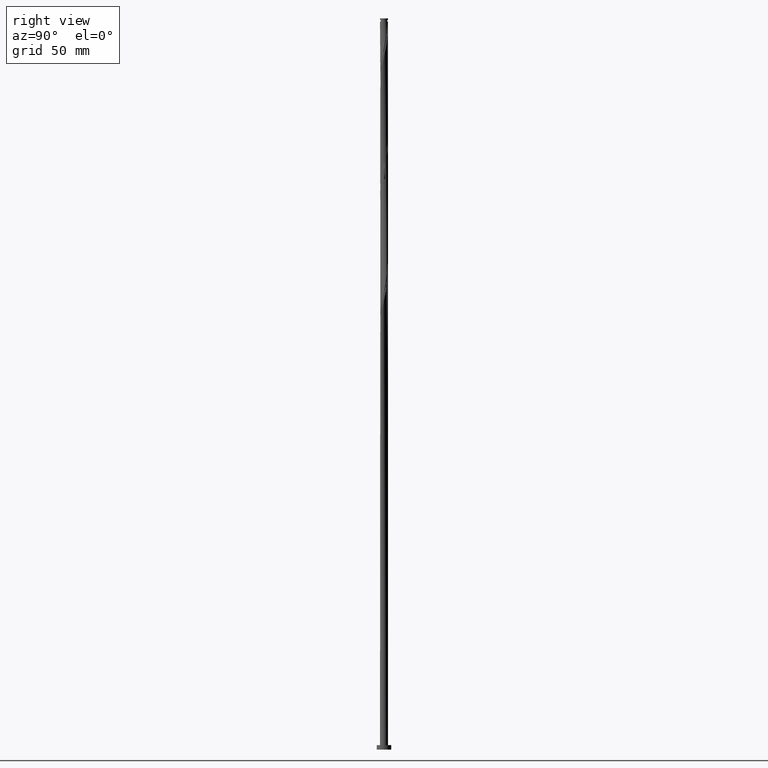
[diagram: clean part render]
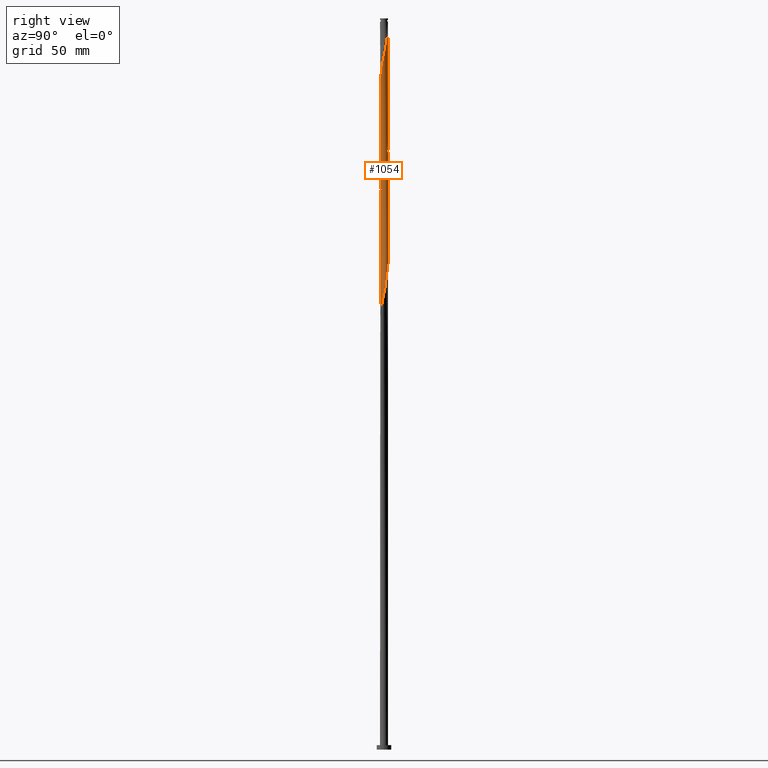
[diagram: same view with one face highlighted and labeled with its STEP entity id]
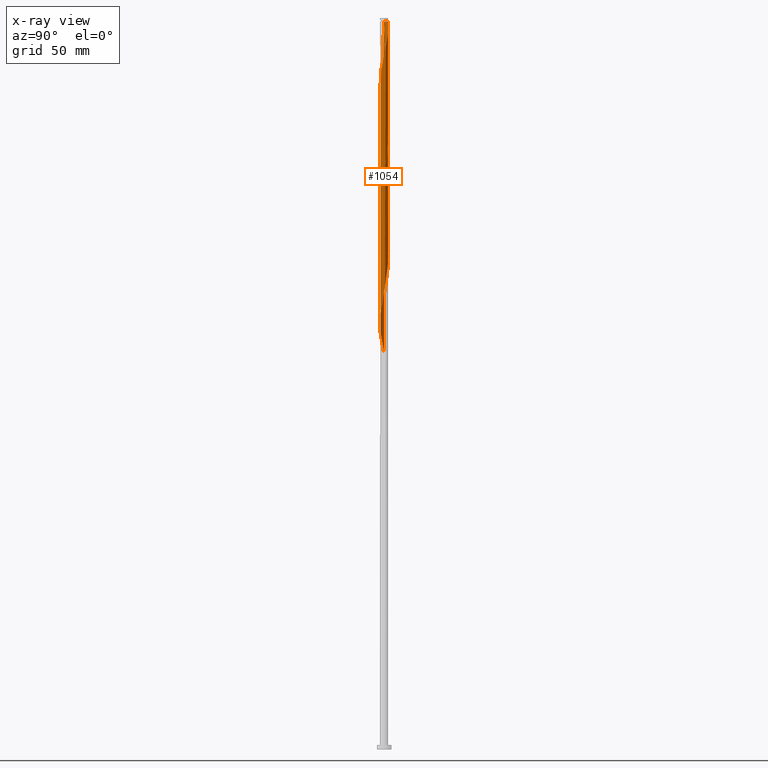
[diagram: x-ray of the same camera — body ghosted, the highlighted face saturated]
A machine part, right view. The second image highlights one B-rep face of the part: STEP entity #1054.
The next image is the same camera in x-ray: the body ghosted, the highlighted face saturated — about 0% of this face is hidden behind the body in this view.
In plain terms, the highlighted cylindrical surface (bore or boss wall) has radius 2.75 mm, axis along (-0, -0, -1).
Its self-contained STEP definition (entity closure, byte-faithful):
#6 = CARTESIAN_POINT ( 'NONE',  ( -2.536454499957780495, 1.062496385708639801, 349.3820904447323983 ) ) ;
#27 = CARTESIAN_POINT ( 'NONE',  ( -2.750000000000000888, 8.331319841557538890E-16, 271.3097874227292436 ) ) ;
#32 = CARTESIAN_POINT ( 'NONE',  ( 1.312315348961076156, 2.431807739867421159, 327.2466737780657695 ) ) ;
#34 = DIRECTION ( 'NONE',  ( -0.000000000000000000, -0.000000000000000000, -1.000000000000000000 ) ) ;
#42 = VERTEX_POINT ( 'NONE', #1662 ) ;
#58 = CARTESIAN_POINT ( 'NONE',  ( -2.641101260048139832, 0.8126774224562037796, 434.0175071113991407 ) ) ;
#71 = CARTESIAN_POINT ( 'NONE',  ( 1.312315348961076156, 2.431807739867421159, 410.5800071113989702 ) ) ;
#75 = CARTESIAN_POINT ( 'NONE',  ( -0.5472430904086980075, 2.695000000000714380, 497.8195904447322278 ) ) ;
#78 = VERTEX_POINT ( 'NONE', #296 ) ;
#80 = CARTESIAN_POINT ( 'NONE',  ( 2.750000000000000000, 3.367778697655220519E-16, 497.8195904447323414 ) ) ;
#83 = CARTESIAN_POINT ( 'NONE',  ( 2.442190327116361193, 1.292890894444388872, 402.7675071113990839 ) ) ;
#85 = CARTESIAN_POINT ( 'NONE',  ( -2.749978161415632893, -0.01095955004170822214, 432.7154237780657127 ) ) ;
#92 = CARTESIAN_POINT ( 'NONE',  ( 1.062496385708640911, 2.536454499957780051, 328.5487571113989134 ) ) ;
#95 = CARTESIAN_POINT ( 'NONE',  ( -2.280434475942255457, 1.536918540760688234, 430.1112571113990839 ) ) ;
#97 = CARTESIAN_POINT ( 'NONE',  ( 2.431807739867426932, 1.312315348961076822, 480.8925071113990271 ) ) ;
#104 = CARTESIAN_POINT ( 'NONE',  ( 2.292612075483181133, 1.518693475112307345, 320.7362571113990839 ) ) ;
#107 = CARTESIAN_POINT ( 'NONE',  ( 2.748898739951862513, 0.2818087583610887070, 475.6841737780657127 ) ) ;
#112 = CARTESIAN_POINT ( 'NONE',  ( -0.2818087583610884295, -2.748898739951858072, 374.1216737780655990 ) ) ;
#116 = CARTESIAN_POINT ( 'NONE',  ( 1.518693475112311786, 2.292612075483183798, 487.4029237780655990 ) ) ;
#145 = CARTESIAN_POINT ( 'NONE',  ( 2.431807739867421159, -1.312315348961075268, 389.7466737780657127 ) ) ;
#147 = CARTESIAN_POINT ( 'NONE',  ( -1.952277778205150360, -1.936778633898660118, 281.6737571113990839 ) ) ;
#168 = CARTESIAN_POINT ( 'NONE',  ( -2.292612075483181133, -1.518693475112308233, 279.0695904447322846 ) ) ;
#174 = CARTESIAN_POINT ( 'NONE',  ( -2.749999999999951150, 0.000000000000000000, 497.8195904447323414 ) ) ;
#215 =( BOUNDED_CURVE ( )  B_SPLINE_CURVE ( 2, ( #1269, #1869, #501, #1719, #1570, #977, #1434, #145, #411, #1655, #1802, #289, #271, #764, #1792, #907, #1371, #915, #598, #112, #728, #1032, #1343, #1952, #1051, #1828, #1272, #1872, #504, #1124, #971, #609, #1227, #457, #1675, #1239, #924, #776, #6, #467, #321, #938, #1927, #1625, #1945, #1901, #1568, #1010, #955, #1106, #534, #690, #1304, #402, #92, #32, #1477, #649, #1705, #1867, #104, #1153, #1323, #1000, #1921, #720, #1332, #347, #498, #1117, #1718, #1447, #1753, #382, #1600, #237, #432, #611, #1657, #1524, #1198, #748, #591, #1830, #1208, #1812, #291, #1515, #1373, #757, #147, #470, #168, #1735, #622, #961, #1274, #506, #27 ),
 .UNSPECIFIED., .F., .T. ) 
 B_SPLINE_CURVE_WITH_KNOTS ( ( 3, 2, 2, 2, 2, 2, 2, 2, 2, 2, 2, 2, 2, 2, 2, 2, 2, 2, 2, 2, 2, 2, 2, 2, 2, 2, 2, 2, 2, 2, 2, 2, 2, 2, 2, 2, 2, 2, 2, 2, 2, 2, 2, 2, 2, 2, 2, 2, 2, 3 ),
 ( 0.5545286902180867061, 0.5546875000000000000, 0.5625000000000000000, 0.5703125000000000000, 0.5781250000000000000, 0.5859375000000000000, 0.5937500000000000000, 0.6015625000000000000, 0.6093750000000000000, 0.6171875000000000000, 0.6250000000000000000, 0.6328125000000000000, 0.6406250000000000000, 0.6484375000000000000, 0.6562500000000000000, 0.6640625000000000000, 0.6718750000000000000, 0.6796875000000000000, 0.6875000000000000000, 0.6953125000000000000, 0.7031250000000000000, 0.7109375000000000000, 0.7187500000000000000, 0.7265625000000000000, 0.7343750000000000000, 0.7421875000000000000, 0.7500000000000000000, 0.7578125000000000000, 0.7656250000000000000, 0.7734375000000000000, 0.7812500000000000000, 0.7890625000000000000, 0.7968750000000000000, 0.8046875000000000000, 0.8125000000000000000, 0.8203125000000000000, 0.8281250000000000000, 0.8359375000000000000, 0.8437500000000000000, 0.8515625000000000000, 0.8593750000000000000, 0.8671875000000000000, 0.8750000000000000000, 0.8828125000000000000, 0.8906250000000000000, 0.8984375000000000000, 0.9062500000000000000, 0.9140625000000000000, 0.9218750000000000000, 0.9295286902180871502 ),
 .UNSPECIFIED. ) 
 CURVE ( )  GEOMETRIC_REPRESENTATION_ITEM ( )  RATIONAL_B_SPLINE_CURVE ( ( 0.9089165573359827555, 0.9090019243628877366, 0.9090909090909797818, 0.9047133878838858889, 0.9090909090909797818, 0.9047133878838858889, 0.9090909090909797818, 0.9047133878838858889, 0.9090909090909797818, 0.9047133878838858889, 0.9090909090909797818, 0.9047133878838858889, 0.9090909090909797818, 0.9047133878838858889, 0.9090909090909797818, 0.9047133878838858889, 0.9090909090909797818, 0.9047133878838858889, 0.9090909090909797818, 0.9047133878838858889, 0.9090909090909797818, 0.9047133878838858889, 0.9090909090909797818, 0.9047133878838858889, 0.9090909090909797818, 0.9047133878838858889, 0.9090909090909797818, 0.9047133878838858889, 0.9090909090909797818, 0.9047133878838858889, 0.9090909090909797818, 0.9047133878838858889, 0.9090909090909797818, 0.9047133878838858889, 0.9090909090909797818, 0.9047133878838858889, 0.9090909090909797818, 0.9047133878838858889, 0.9090909090909797818, 0.9047133878838858889, 0.9090909090909797818, 0.9047133878838858889, 0.9090909090909797818, 0.9047133878838858889, 0.9090909090909797818, 0.9047133878838858889, 0.9090909090909797818, 0.9047133878838858889, 0.9090909090909797818, 0.9047133878838858889, 0.9090909090909797818, 0.9047133878838858889, 0.9090909090909797818, 0.9047133878838858889, 0.9090909090909797818, 0.9047133878838858889, 0.9090909090909797818, 0.9047133878838858889, 0.9090909090909797818, 0.9047133878838858889, 0.9090909090909797818, 0.9047133878838858889, 0.9090909090909797818, 0.9047133878838858889, 0.9090909090909797818, 0.9047133878838858889, 0.9090909090909797818, 0.9047133878838858889, 0.9090909090909797818, 0.9047133878838858889, 0.9090909090909797818, 0.9047133878838858889, 0.9090909090909797818, 0.9047133878838858889, 0.9090909090909797818, 0.9047133878838858889, 0.9090909090909797818, 0.9047133878838858889, 0.9090909090909797818, 0.9047133878838858889, 0.9090909090909797818, 0.9047133878838858889, 0.9090909090909797818, 0.9047133878838858889, 0.9090909090909797818, 0.9047133878838858889, 0.9090909090909797818, 0.9047133878838858889, 0.9090909090909797818, 0.9047133878838858889, 0.9090909090909797818, 0.9047133878838858889, 0.9090909090909797818, 0.9047133878838858889, 0.9090909090909797818, 0.9047133878838858889, 0.9090909090909797818, 0.9048023726119778232, 0.9089165573359829775 ) ) 
 REPRESENTATION_ITEM ( '' )  );
#224 = CARTESIAN_POINT ( 'NONE',  ( -1.042245777770503645, 2.544842576412056800, 422.2987571113989702 ) ) ;
#229 = CARTESIAN_POINT ( 'NONE',  ( -2.695000000000002061, -0.5472430904086459380, 435.3195904447322846 ) ) ;
#232 = DIRECTION ( 'NONE',  ( -0.000000000000000000, -0.000000000000000000, -1.000000000000000000 ) ) ;
#237 = CARTESIAN_POINT ( 'NONE',  ( 1.744496055780226040, -2.143033823850002406, 301.2050071113989702 ) ) ;
#250 = CARTESIAN_POINT ( 'NONE',  ( 0.000000000000000000, 0.000000000000000000, 500.0000000000000000 ) ) ;
#263 = ORIENTED_EDGE ( 'NONE', *, *, #1513, .F. ) ;
#265 = CARTESIAN_POINT ( 'NONE',  ( 2.280434475942259898, 1.536918540760690233, 482.1945904447322846 ) ) ;
#271 = CARTESIAN_POINT ( 'NONE',  ( 1.518693475112308233, -2.292612075483181133, 383.2362571113990271 ) ) ;
#289 = CARTESIAN_POINT ( 'NONE',  ( 1.744496055780226040, -2.143033823850002406, 384.5383404447322846 ) ) ;
#291 = CARTESIAN_POINT ( 'NONE',  ( -1.062496385708640467, -2.536454499957780495, 286.8820904447323983 ) ) ;
#296 = CARTESIAN_POINT ( 'NONE',  ( -2.750000000000003553, -4.752766352566343433E-17, 432.6627268000688673 ) ) ;
#299 = EDGE_CURVE ( 'NONE', #1903, #882, #1549, .T. ) ;
#321 = CARTESIAN_POINT ( 'NONE',  ( -2.280434475942255457, 1.536918540760688234, 346.7779237780657695 ) ) ;
#347 = CARTESIAN_POINT ( 'NONE',  ( 2.748898739951857628, -0.2818087583610896507, 311.6216737780655990 ) ) ;
#369 = LINE ( 'NONE', #395, #807 ) ;
#377 = CARTESIAN_POINT ( 'NONE',  ( -2.280434475942259898, -1.536918540760689789, 440.5279237780655990 ) ) ;
#382 = CARTESIAN_POINT ( 'NONE',  ( 2.129061212017091087, -1.761521732560300535, 303.8091737780656558 ) ) ;
#392 = CARTESIAN_POINT ( 'NONE',  ( -1.936778633898660118, 1.952277778205150804, 427.5070904447323414 ) ) ;
#394 = CARTESIAN_POINT ( 'NONE',  ( -2.536454499957784936, -1.062496385708640911, 437.9237571113989702 ) ) ;
#395 = CARTESIAN_POINT ( 'NONE',  ( -2.750000000000000000, 0.000000000000000000, 500.0000000000000000 ) ) ;
#402 = CARTESIAN_POINT ( 'NONE',  ( 0.8126774224562031135, 2.641101260048139832, 329.8508404447323983 ) ) ;
#411 = CARTESIAN_POINT ( 'NONE',  ( 2.280434475942255457, -1.536918540760689345, 388.4445904447322846 ) ) ;
#416 = CARTESIAN_POINT ( 'NONE',  ( -1.292890894444391536, -2.442190327116363857, 447.0383404447323414 ) ) ;
#432 = CARTESIAN_POINT ( 'NONE',  ( 1.518693475112308233, -2.292612075483181133, 299.9029237780657127 ) ) ;
#437 = VERTEX_POINT ( 'NONE', #174 ) ;
#457 = CARTESIAN_POINT ( 'NONE',  ( -2.751057582879400609, -0.2598896582776700770, 355.8925071113990271 ) ) ;
#467 = CARTESIAN_POINT ( 'NONE',  ( -2.431807739867421159, 1.312315348961075268, 348.0800071113990839 ) ) ;
#470 = CARTESIAN_POINT ( 'NONE',  ( -2.143033823850001518, -1.744496055780227595, 280.3716737780656558 ) ) ;
#476 = CARTESIAN_POINT ( 'NONE',  ( 2.750000000000000000, 3.367778697655220519E-16, 500.0000000000000000 ) ) ;
#481 = CARTESIAN_POINT ( 'NONE',  ( -2.694999999999998952, 0.5472430904086462711, 435.3195904447323414 ) ) ;
#498 = CARTESIAN_POINT ( 'NONE',  ( 2.694999999999998952, -0.5472430904086464931, 310.3195904447323983 ) ) ;
#501 = CARTESIAN_POINT ( 'NONE',  ( 2.749978161415628009, -0.01095955004170866623, 396.2570904447324551 ) ) ;
#504 = CARTESIAN_POINT ( 'NONE',  ( -2.292612075483181133, -1.518693475112308233, 362.4029237780657695 ) ) ;
#506 = CARTESIAN_POINT ( 'NONE',  ( -2.749999999999999556, -0.2653194910546968766, 272.5857675281452543 ) ) ;
#526 = CARTESIAN_POINT ( 'NONE',  ( 0.2818087583610884295, 2.748898739951858072, 415.7883404447323414 ) ) ;
#534 = CARTESIAN_POINT ( 'NONE',  ( 0.01095955004170887440, 2.749978161415628009, 333.7570904447323983 ) ) ;
#536 = CARTESIAN_POINT ( 'NONE',  ( 0.5472430904086464931, 2.694999999999998952, 414.4862571113990271 ) ) ;
#549 = CARTESIAN_POINT ( 'NONE',  ( 1.952277778205152581, -1.936778633898663449, 463.9654237780655990 ) ) ;
#559 = CARTESIAN_POINT ( 'NONE',  ( 2.129061212017095972, 1.761521732560302311, 483.4966737780657127 ) ) ;
#566 = CARTESIAN_POINT ( 'NONE',  ( -2.431807739867421159, 1.312315348961075268, 431.4133404447322846 ) ) ;
#568 = CARTESIAN_POINT ( 'NONE',  ( -0.7916006610966208612, -2.647494825707756849, 449.6425071113990839 ) ) ;
#576 = CARTESIAN_POINT ( 'NONE',  ( -0.2598896582776717423, -2.751057582879404606, 452.2466737780657695 ) ) ;
#579 = ORIENTED_EDGE ( 'NONE', *, *, #1934, .T. ) ;
#591 = CARTESIAN_POINT ( 'NONE',  ( -0.01095955004170855521, -2.749978161415628009, 292.0904237780656558 ) ) ;
#596 = VERTEX_POINT ( 'NONE', #1858 ) ;
#598 = CARTESIAN_POINT ( 'NONE',  ( -0.01095955004170855521, -2.749978161415628009, 375.4237571113990839 ) ) ;
#609 = CARTESIAN_POINT ( 'NONE',  ( -2.647494825707753296, -0.7916006610966187518, 358.4966737780657695 ) ) ;
#611 = CARTESIAN_POINT ( 'NONE',  ( 1.292890894444388206, -2.442190327116361193, 298.6008404447323414 ) ) ;
#622 = CARTESIAN_POINT ( 'NONE',  ( -2.544842576412057689, -1.042245777770502757, 276.4654237780658264 ) ) ;
#649 = CARTESIAN_POINT ( 'NONE',  ( 1.761521732560300535, 2.129061212017090199, 324.6425071113990271 ) ) ;
#657 = DIRECTION ( 'NONE',  ( -0.000000000000000000, -0.000000000000000000, -1.000000000000000000 ) ) ;
#658 = EDGE_CURVE ( 'NONE', #882, #596, #215, .T. ) ;
#674 = CARTESIAN_POINT ( 'NONE',  ( -0.5472430904086980075, 2.695000000000713936, 497.8195904447322278 ) ) ;
#686 = DIRECTION ( 'NONE',  ( -0.000000000000000000, -0.000000000000000000, -1.000000000000000000 ) ) ;
#690 = CARTESIAN_POINT ( 'NONE',  ( 0.2818087583610884295, 2.748898739951858072, 332.4550071113990271 ) ) ;
#692 = CARTESIAN_POINT ( 'NONE',  ( 1.536918540760689345, 2.280434475942255457, 409.2779237780657695 ) ) ;
#694 = CARTESIAN_POINT ( 'NONE',  ( 2.292612075483183798, -1.518693475112311786, 466.5695904447322278 ) ) ;
#703 = CARTESIAN_POINT ( 'NONE',  ( -1.744496055780227595, 2.143033823850001074, 426.2050071113990839 ) ) ;
#707 = CARTESIAN_POINT ( 'NONE',  ( 2.143033823850003294, -1.744496055780231147, 465.2675071113990271 ) ) ;
#715 = LINE ( 'NONE', #994, #1259 ) ;
#720 = CARTESIAN_POINT ( 'NONE',  ( 2.751057582879399721, 0.2598896582776699660, 314.2258404447323414 ) ) ;
#726 = ORIENTED_EDGE ( 'NONE', *, *, #299, .T. ) ;
#728 = CARTESIAN_POINT ( 'NONE',  ( -0.5472430904086462711, -2.694999999999998952, 372.8195904447323983 ) ) ;
#730 = CARTESIAN_POINT ( 'NONE',  ( -0.2598896582776707986, 2.751057582879400609, 418.3925071113990271 ) ) ;
#732 = CARTESIAN_POINT ( 'NONE',  ( 0.7916006610966210832, 2.647494825707756849, 491.3091737780656558 ) ) ;
#748 = CARTESIAN_POINT ( 'NONE',  ( 0.2598896582776700215, -2.751057582879399721, 293.3925071113990271 ) ) ;
#755 = EDGE_CURVE ( 'NONE', #42, #882, #1723, .T. ) ;
#757 = CARTESIAN_POINT ( 'NONE',  ( -1.761521732560300535, -2.129061212017091087, 282.9758404447322846 ) ) ;
#764 = CARTESIAN_POINT ( 'NONE',  ( 1.292890894444388206, -2.442190327116361193, 381.9341737780657695 ) ) ;
#766 =( BOUNDED_CURVE ( )  B_SPLINE_CURVE ( 2, ( #1748, #1327, #85, #1933, #229, #1315, #394, #1594, #377, #1346, #1925, #874, #1037, #416, #1004, #568, #1307, #576, #1915, #1013, #884, #1167, #1337, #856, #1489, #1183, #549, #707, #694, #1767, #1784, #1614, #1025, #1632, #1906, #107, #864, #993, #1471, #97, #265, #559, #1175, #1452, #116, #1158, #1480, #732, #1942, #1758, #846, #1775, #75 ),
 .UNSPECIFIED., .F., .T. ) 
 B_SPLINE_CURVE_WITH_KNOTS ( ( 3, 2, 2, 2, 2, 2, 2, 2, 2, 2, 2, 2, 2, 2, 2, 2, 2, 2, 2, 2, 2, 2, 2, 2, 2, 2, 3 ),
 ( 0.5545286902180871502, 0.5546875000000000000, 0.5625000000000000000, 0.5703125000000000000, 0.5781250000000000000, 0.5859375000000000000, 0.5937500000000000000, 0.6015625000000000000, 0.6093750000000000000, 0.6171875000000000000, 0.6250000000000000000, 0.6328125000000000000, 0.6406250000000000000, 0.6484375000000000000, 0.6562500000000000000, 0.6640625000000000000, 0.6718750000000000000, 0.6796875000000000000, 0.6875000000000000000, 0.6953125000000000000, 0.7031250000000000000, 0.7109375000000000000, 0.7187500000000000000, 0.7265625000000000000, 0.7343750000000000000, 0.7421875000000000000, 0.7500000000000000000 ),
 .UNSPECIFIED. ) 
 CURVE ( )  GEOMETRIC_REPRESENTATION_ITEM ( )  RATIONAL_B_SPLINE_CURVE ( ( 0.9089165573359901940, 0.9090019243628949530, 0.9090909090909867762, 0.9047133878838926613, 0.9090909090909867762, 0.9047133878838926613, 0.9090909090909867762, 0.9047133878838926613, 0.9090909090909867762, 0.9047133878838926613, 0.9090909090909867762, 0.9047133878838926613, 0.9090909090909867762, 0.9047133878838926613, 0.9090909090909867762, 0.9047133878838926613, 0.9090909090909867762, 0.9047133878838926613, 0.9090909090909867762, 0.9047133878838926613, 0.9090909090909867762, 0.9047133878838926613, 0.9090909090909867762, 0.9047133878838926613, 0.9090909090909867762, 0.9047133878838926613, 0.9090909090909867762, 0.9047133878838926613, 0.9090909090909867762, 0.9047133878838926613, 0.9090909090909867762, 0.9047133878838926613, 0.9090909090909867762, 0.9047133878838926613, 0.9090909090909867762, 0.9047133878838926613, 0.9090909090909867762, 0.9047133878838926613, 0.9090909090909867762, 0.9047133878838926613, 0.9090909090909867762, 0.9047133878838926613, 0.9090909090909867762, 0.9047133878838926613, 0.9090909090909867762, 0.9047133878838926613, 0.9090909090909867762, 0.9047133878838926613, 0.9090909090909867762, 0.9047133878838926613, 0.9090909090909867762, 0.9047133878838926613, 0.9090909090909867762 ) ) 
 REPRESENTATION_ITEM ( '' )  );
#776 = CARTESIAN_POINT ( 'NONE',  ( -2.641101260048139832, 0.8126774224562037796, 350.6841737780657695 ) ) ;
#788 = CARTESIAN_POINT ( 'NONE',  ( -2.750000000000000888, 8.331319841557538890E-16, 437.9764540893959861 ) ) ;
#806 = CARTESIAN_POINT ( 'NONE',  ( 2.750000000000000444, -5.349191934064906865E-16, 396.3097874227294142 ) ) ;
#807 = VECTOR ( 'NONE', #1308, 1000.000000000000000 ) ;
#844 = CARTESIAN_POINT ( 'NONE',  ( 1.062496385708640911, 2.536454499957780051, 411.8820904447323414 ) ) ;
#846 = CARTESIAN_POINT ( 'NONE',  ( -0.01095955004170705641, 2.749978161415632449, 495.2154237780656558 ) ) ;
#853 = CARTESIAN_POINT ( 'NONE',  ( 2.292612075483181133, 1.518693475112307345, 404.0695904447324551 ) ) ;
#856 = CARTESIAN_POINT ( 'NONE',  ( 1.312315348961076822, -2.431807739867426932, 460.0591737780657695 ) ) ;
#864 = CARTESIAN_POINT ( 'NONE',  ( 2.695000000000002061, 0.5472430904086454939, 476.9862571113990271 ) ) ;
#874 = CARTESIAN_POINT ( 'NONE',  ( -1.744496055780231147, -2.143033823850003738, 444.4341737780657127 ) ) ;
#875 = CARTESIAN_POINT ( 'NONE',  ( 2.699276204293575621, 0.5257451596871455246, 398.8612571113990271 ) ) ;
#882 = VERTEX_POINT ( 'NONE', #806 ) ;
#884 = CARTESIAN_POINT ( 'NONE',  ( 0.5472430904086458270, -2.695000000000002061, 456.1529237780655421 ) ) ;
#887 = ORIENTED_EDGE ( 'NONE', *, *, #1176, .F. ) ;
#905 = ORIENTED_EDGE ( 'NONE', *, *, #299, .F. ) ;
#907 = CARTESIAN_POINT ( 'NONE',  ( 0.7916006610966186408, -2.647494825707753296, 379.3300071113990271 ) ) ;
#915 = CARTESIAN_POINT ( 'NONE',  ( 0.2598896582776700215, -2.751057582879399721, 376.7258404447322846 ) ) ;
#924 = CARTESIAN_POINT ( 'NONE',  ( -2.694999999999998952, 0.5472430904086462711, 351.9862571113989702 ) ) ;
#938 = CARTESIAN_POINT ( 'NONE',  ( -2.129061212017091087, 1.761521732560300535, 345.4758404447323983 ) ) ;
#955 = CARTESIAN_POINT ( 'NONE',  ( -0.5257451596871448585, 2.699276204293575621, 336.3612571113990839 ) ) ;
#961 = CARTESIAN_POINT ( 'NONE',  ( -2.647494825707753296, -0.7916006610966187518, 275.1633404447323983 ) ) ;
#969 = CIRCLE ( 'NONE', #1098, 2.749999999999951150 ) ;
#971 = CARTESIAN_POINT ( 'NONE',  ( -2.544842576412057689, -1.042245777770502757, 359.7987571113990839 ) ) ;
#977 = CARTESIAN_POINT ( 'NONE',  ( 2.641101260048139832, -0.8126774224562028914, 392.3508404447323983 ) ) ;
#987 = CYLINDRICAL_SURFACE ( 'NONE', #1788, 2.750000000000000000 ) ;
#991 = ORIENTED_EDGE ( 'NONE', *, *, #1325, .T. ) ;
#993 = CARTESIAN_POINT ( 'NONE',  ( 2.641101260048144272, 0.8126774224562030025, 478.2883404447323983 ) ) ;
#994 = CARTESIAN_POINT ( 'NONE',  ( -2.750000000000000000, 0.000000000000000000, 500.0000000000000000 ) ) ;
#1000 = CARTESIAN_POINT ( 'NONE',  ( 2.647494825707752408, 0.7916006610966184187, 316.8300071113990839 ) ) ;
#1004 = CARTESIAN_POINT ( 'NONE',  ( -1.042245777770505866, -2.544842576412060797, 448.3404237780655990 ) ) ;
#1010 = CARTESIAN_POINT ( 'NONE',  ( -0.7916006610966186408, 2.647494825707753296, 337.6633404447323983 ) ) ;
#1013 = CARTESIAN_POINT ( 'NONE',  ( 0.2818087583610876523, -2.748898739951862069, 454.8508404447323414 ) ) ;
#1014 = CARTESIAN_POINT ( 'NONE',  ( 2.749999999999996447, 0.2653194910547119201, 397.5857675281453112 ) ) ;
#1025 = CARTESIAN_POINT ( 'NONE',  ( 2.699276204293580506, -0.5257451596871476340, 471.7779237780656558 ) ) ;
#1032 = CARTESIAN_POINT ( 'NONE',  ( -0.8126774224562040017, -2.641101260048139832, 371.5175071113990839 ) ) ;
#1037 = CARTESIAN_POINT ( 'NONE',  ( -1.518693475112311120, -2.292612075483183798, 445.7362571113989134 ) ) ;
#1051 = CARTESIAN_POINT ( 'NONE',  ( -1.536918540760688900, -2.280434475942255457, 367.6112571113990839 ) ) ;
#1054 = ADVANCED_FACE ( 'NONE', ( #1301 ), #987, .T. ) ;
#1092 = CARTESIAN_POINT ( 'NONE',  ( 0.000000000000000000, 0.000000000000000000, 497.8195904447323414 ) ) ;
#1098 = AXIS2_PLACEMENT_3D ( 'NONE', #1092, #657, #1245 ) ;
#1106 = CARTESIAN_POINT ( 'NONE',  ( -0.2598896582776707986, 2.751057582879400609, 335.0591737780657127 ) ) ;
#1117 = CARTESIAN_POINT ( 'NONE',  ( 2.641101260048139832, -0.8126774224562028914, 309.0175071113989134 ) ) ;
#1124 = CARTESIAN_POINT ( 'NONE',  ( -2.442190327116361193, -1.292890894444388428, 361.1008404447323414 ) ) ;
#1153 = CARTESIAN_POINT ( 'NONE',  ( 2.442190327116361193, 1.292890894444388872, 319.4341737780657695 ) ) ;
#1156 = CARTESIAN_POINT ( 'NONE',  ( 0.8126774224562031135, 2.641101260048139832, 413.1841737780657695 ) ) ;
#1158 = CARTESIAN_POINT ( 'NONE',  ( 1.292890894444393091, 2.442190327116362969, 488.7050071113990271 ) ) ;
#1161 = ORIENTED_EDGE ( 'NONE', *, *, #755, .F. ) ;
#1167 = CARTESIAN_POINT ( 'NONE',  ( 0.8126774224562042237, -2.641101260048143828, 457.4550071113990271 ) ) ;
#1175 = CARTESIAN_POINT ( 'NONE',  ( 1.936778633898663449, 1.952277778205152359, 484.7987571113989134 ) ) ;
#1176 = EDGE_CURVE ( 'NONE', #437, #42, #369, .T. ) ;
#1183 = CARTESIAN_POINT ( 'NONE',  ( 1.761521732560302533, -2.129061212017095528, 462.6633404447324551 ) ) ;
#1184 = CARTESIAN_POINT ( 'NONE',  ( 2.750000000000000444, -5.349191934064906865E-16, 396.3097874227294142 ) ) ;
#1198 = CARTESIAN_POINT ( 'NONE',  ( 0.5257451596871445254, -2.699276204293575621, 294.6945904447323414 ) ) ;
#1205 = ORIENTED_EDGE ( 'NONE', *, *, #658, .F. ) ;
#1208 = CARTESIAN_POINT ( 'NONE',  ( -0.5472430904086462711, -2.694999999999998952, 289.4862571113990271 ) ) ;
#1227 = CARTESIAN_POINT ( 'NONE',  ( -2.699276204293575621, -0.5257451596871446364, 357.1945904447323414 ) ) ;
#1239 = CARTESIAN_POINT ( 'NONE',  ( -2.748898739951858072, 0.2818087583610882629, 353.2883404447322846 ) ) ;
#1241 = CARTESIAN_POINT ( 'NONE',  ( -2.749999999999999556, 0.005479796779217413136, 437.9501005348787430 ) ) ;
#1245 = DIRECTION ( 'NONE',  ( -1.000000000000000000, 0.000000000000000000, 0.000000000000000000 ) ) ;
#1259 = VECTOR ( 'NONE', #232, 1000.000000000000000 ) ;
#1269 = CARTESIAN_POINT ( 'NONE',  ( 2.750000000000000444, -5.349191934064906865E-16, 396.3097874227294142 ) ) ;
#1272 = CARTESIAN_POINT ( 'NONE',  ( -1.952277778205150360, -1.936778633898660118, 365.0070904447323414 ) ) ;
#1274 = CARTESIAN_POINT ( 'NONE',  ( -2.699276204293575621, -0.5257451596871446364, 273.8612571113990839 ) ) ;
#1297 = VERTEX_POINT ( 'NONE', #674 ) ;
#1301 = FACE_OUTER_BOUND ( 'NONE', #1483, .T. ) ;
#1304 = CARTESIAN_POINT ( 'NONE',  ( 0.5472430904086464931, 2.694999999999998952, 331.1529237780657127 ) ) ;
#1307 = CARTESIAN_POINT ( 'NONE',  ( -0.5257451596871463018, -2.699276204293580506, 450.9445904447323414 ) ) ;
#1308 = DIRECTION ( 'NONE',  ( -0.000000000000000000, -0.000000000000000000, -1.000000000000000000 ) ) ;
#1315 = CARTESIAN_POINT ( 'NONE',  ( -2.641101260048143828, -0.8126774224562044457, 436.6216737780657695 ) ) ;
#1323 = CARTESIAN_POINT ( 'NONE',  ( 2.544842576412057689, 1.042245777770502313, 318.1320904447324551 ) ) ;
#1325 = EDGE_CURVE ( 'NONE', #78, #596, #715, .T. ) ;
#1327 = CARTESIAN_POINT ( 'NONE',  ( -2.750000000000003553, -0.005479796779218552849, 432.6890803545861672 ) ) ;
#1328 = CARTESIAN_POINT ( 'NONE',  ( 2.647494825707752408, 0.7916006610966184187, 400.1633404447323414 ) ) ;
#1332 = CARTESIAN_POINT ( 'NONE',  ( 2.749978161415628009, -0.01095955004170866623, 312.9237571113990839 ) ) ;
#1337 = CARTESIAN_POINT ( 'NONE',  ( 1.062496385708641355, -2.536454499957784936, 458.7570904447323983 ) ) ;
#1343 = CARTESIAN_POINT ( 'NONE',  ( -1.062496385708640467, -2.536454499957780495, 370.2154237780657127 ) ) ;
#1346 = CARTESIAN_POINT ( 'NONE',  ( -2.129061212017095528, -1.761521732560302977, 441.8300071113990839 ) ) ;
#1371 = CARTESIAN_POINT ( 'NONE',  ( 0.5257451596871445254, -2.699276204293575621, 378.0279237780657127 ) ) ;
#1373 = CARTESIAN_POINT ( 'NONE',  ( -1.536918540760688900, -2.280434475942255457, 284.2779237780657695 ) ) ;
#1434 = CARTESIAN_POINT ( 'NONE',  ( 2.536454499957780051, -1.062496385708640689, 391.0487571113990839 ) ) ;
#1447 = CARTESIAN_POINT ( 'NONE',  ( 2.431807739867421159, -1.312315348961075268, 306.4133404447323983 ) ) ;
#1452 = CARTESIAN_POINT ( 'NONE',  ( 1.744496055780230481, 2.143033823850004627, 486.1008404447323983 ) ) ;
#1459 = CARTESIAN_POINT ( 'NONE',  ( 1.761521732560300535, 2.129061212017090199, 407.9758404447323414 ) ) ;
#1471 = CARTESIAN_POINT ( 'NONE',  ( 2.536454499957784936, 1.062496385708641133, 479.5904237780656558 ) ) ;
#1477 = CARTESIAN_POINT ( 'NONE',  ( 1.536918540760689345, 2.280434475942255457, 325.9445904447323983 ) ) ;
#1480 = CARTESIAN_POINT ( 'NONE',  ( 1.042245777770505866, 2.544842576412060797, 490.0070904447323414 ) ) ;
#1483 = EDGE_LOOP ( 'NONE', ( #887, #579, #263, #991, #1205, #905, #726, #1161 ) ) ;
#1487 = CARTESIAN_POINT ( 'NONE',  ( -0.7916006610966186408, 2.647494825707753296, 420.9966737780657127 ) ) ;
#1489 = CARTESIAN_POINT ( 'NONE',  ( 1.536918540760689789, -2.280434475942259898, 461.3612571113990271 ) ) ;
#1513 = EDGE_CURVE ( 'NONE', #78, #1297, #766, .T. ) ;
#1515 = CARTESIAN_POINT ( 'NONE',  ( -1.312315348961075268, -2.431807739867421159, 285.5800071113989702 ) ) ;
#1524 = CARTESIAN_POINT ( 'NONE',  ( 0.7916006610966186408, -2.647494825707753296, 295.9966737780657127 ) ) ;
#1549 = LINE ( 'NONE', #476, #1879 ) ;
#1568 = CARTESIAN_POINT ( 'NONE',  ( -1.042245777770503645, 2.544842576412056800, 338.9654237780656558 ) ) ;
#1570 = CARTESIAN_POINT ( 'NONE',  ( 2.694999999999998952, -0.5472430904086464931, 393.6529237780657695 ) ) ;
#1587 = DIRECTION ( 'NONE',  ( -1.000000000000000000, 0.000000000000000000, 0.000000000000000000 ) ) ;
#1594 = CARTESIAN_POINT ( 'NONE',  ( -2.431807739867426044, -1.312315348961077044, 439.2258404447323414 ) ) ;
#1600 = CARTESIAN_POINT ( 'NONE',  ( 1.936778633898660118, -1.952277778205150360, 302.5070904447323983 ) ) ;
#1602 = CARTESIAN_POINT ( 'NONE',  ( 2.143033823850002406, 1.744496055780225596, 405.3716737780656558 ) ) ;
#1612 = CARTESIAN_POINT ( 'NONE',  ( -1.518693475112308677, 2.292612075483181133, 424.9029237780657127 ) ) ;
#1614 = CARTESIAN_POINT ( 'NONE',  ( 2.647494825707756849, -0.7916006610966210832, 470.4758404447323983 ) ) ;
#1621 = CARTESIAN_POINT ( 'NONE',  ( -2.536454499957780495, 1.062496385708639801, 432.7154237780658264 ) ) ;
#1625 = CARTESIAN_POINT ( 'NONE',  ( -1.744496055780227595, 2.143033823850001074, 342.8716737780656558 ) ) ;
#1630 = CARTESIAN_POINT ( 'NONE',  ( -1.292890894444388650, 2.442190327116361193, 423.6008404447323983 ) ) ;
#1632 = CARTESIAN_POINT ( 'NONE',  ( 2.751057582879404606, -0.2598896582776718533, 473.0800071113990271 ) ) ;
#1655 = CARTESIAN_POINT ( 'NONE',  ( 2.129061212017091087, -1.761521732560300535, 387.1425071113989702 ) ) ;
#1657 = CARTESIAN_POINT ( 'NONE',  ( 1.042245777770502757, -2.544842576412057689, 297.2987571113990839 ) ) ;
#1662 = CARTESIAN_POINT ( 'NONE',  ( -2.750000000000000444, 8.331319841557538890E-16, 437.9764540893959861 ) ) ;
#1675 = CARTESIAN_POINT ( 'NONE',  ( -2.749978161415628009, 0.01095955004170898195, 354.5904237780657695 ) ) ;
#1705 = CARTESIAN_POINT ( 'NONE',  ( 1.952277778205150360, 1.936778633898660118, 323.3404237780657695 ) ) ;
#1718 = CARTESIAN_POINT ( 'NONE',  ( 2.536454499957780051, -1.062496385708640689, 307.7154237780657127 ) ) ;
#1719 = CARTESIAN_POINT ( 'NONE',  ( 2.748898739951857628, -0.2818087583610896507, 394.9550071113990271 ) ) ;
#1723 =( BOUNDED_CURVE ( )  B_SPLINE_CURVE ( 2, ( #788, #1241, #1840, #1849, #481, #58, #1621, #566, #95, #1782, #392, #703, #1612, #1630, #224, #1487, #1904, #730, #1894, #526, #536, #1156, #844, #71, #692, #1459, #1756, #1602, #853, #83, #1796, #1328, #875, #1014, #1184 ),
 .UNSPECIFIED., .F., .T. ) 
 B_SPLINE_CURVE_WITH_KNOTS ( ( 3, 2, 2, 2, 2, 2, 2, 2, 2, 2, 2, 2, 2, 2, 2, 2, 2, 3 ),
 ( 0.4295286902180870947, 0.4296875000000000000, 0.4375000000000000000, 0.4453125000000000000, 0.4531250000000000000, 0.4609375000000000000, 0.4687500000000000000, 0.4765625000000000000, 0.4843750000000000000, 0.4921875000000000000, 0.5000000000000000000, 0.5078125000000000000, 0.5156250000000000000, 0.5234375000000000000, 0.5312500000000000000, 0.5390625000000000000, 0.5468750000000000000, 0.5545286902180867061 ),
 .UNSPECIFIED. ) 
 CURVE ( )  GEOMETRIC_REPRESENTATION_ITEM ( )  RATIONAL_B_SPLINE_CURVE ( ( 0.9089165573359829775, 0.9090019243628878476, 0.9090909090909797818, 0.9047133878838858889, 0.9090909090909797818, 0.9047133878838858889, 0.9090909090909797818, 0.9047133878838858889, 0.9090909090909797818, 0.9047133878838858889, 0.9090909090909797818, 0.9047133878838858889, 0.9090909090909797818, 0.9047133878838858889, 0.9090909090909797818, 0.9047133878838858889, 0.9090909090909797818, 0.9047133878838858889, 0.9090909090909797818, 0.9047133878838858889, 0.9090909090909797818, 0.9047133878838858889, 0.9090909090909797818, 0.9047133878838858889, 0.9090909090909797818, 0.9047133878838858889, 0.9090909090909797818, 0.9047133878838858889, 0.9090909090909797818, 0.9047133878838858889, 0.9090909090909797818, 0.9047133878838858889, 0.9090909090909797818, 0.9048023726119779342, 0.9089165573359827555 ) ) 
 REPRESENTATION_ITEM ( '' )  );
#1735 = CARTESIAN_POINT ( 'NONE',  ( -2.442190327116361193, -1.292890894444388428, 277.7675071113990271 ) ) ;
#1748 = CARTESIAN_POINT ( 'NONE',  ( -2.750000000000003553, -4.752766352566343433E-17, 432.6627268000688673 ) ) ;
#1753 = CARTESIAN_POINT ( 'NONE',  ( 2.280434475942255457, -1.536918540760689345, 305.1112571113990271 ) ) ;
#1756 = CARTESIAN_POINT ( 'NONE',  ( 1.952277778205150360, 1.936778633898660118, 406.6737571113990839 ) ) ;
#1758 = CARTESIAN_POINT ( 'NONE',  ( 0.2598896582776720754, 2.751057582879404606, 493.9133404447323983 ) ) ;
#1767 = CARTESIAN_POINT ( 'NONE',  ( 2.442190327116362969, -1.292890894444393091, 467.8716737780656558 ) ) ;
#1775 = CARTESIAN_POINT ( 'NONE',  ( -0.2818087583610885960, 2.748898739951862513, 496.5175071113991976 ) ) ;
#1782 = CARTESIAN_POINT ( 'NONE',  ( -2.129061212017091087, 1.761521732560300535, 428.8091737780657127 ) ) ;
#1784 = CARTESIAN_POINT ( 'NONE',  ( 2.544842576412060797, -1.042245777770505866, 469.1737571113989702 ) ) ;
#1788 = AXIS2_PLACEMENT_3D ( 'NONE', #250, #686, #1587 ) ;
#1792 = CARTESIAN_POINT ( 'NONE',  ( 1.042245777770502757, -2.544842576412057689, 380.6320904447323414 ) ) ;
#1796 = CARTESIAN_POINT ( 'NONE',  ( 2.544842576412057689, 1.042245777770502313, 401.4654237780658264 ) ) ;
#1802 = CARTESIAN_POINT ( 'NONE',  ( 1.936778633898660118, -1.952277778205150360, 385.8404237780656558 ) ) ;
#1812 = CARTESIAN_POINT ( 'NONE',  ( -0.8126774224562040017, -2.641101260048139832, 288.1841737780657695 ) ) ;
#1828 = CARTESIAN_POINT ( 'NONE',  ( -1.761521732560300535, -2.129061212017091087, 366.3091737780657695 ) ) ;
#1830 = CARTESIAN_POINT ( 'NONE',  ( -0.2818087583610884295, -2.748898739951858072, 290.7883404447322846 ) ) ;
#1840 = CARTESIAN_POINT ( 'NONE',  ( -2.749978161415628009, 0.01095955004170898195, 437.9237571113990839 ) ) ;
#1849 = CARTESIAN_POINT ( 'NONE',  ( -2.748898739951858072, 0.2818087583610882629, 436.6216737780656558 ) ) ;
#1858 = CARTESIAN_POINT ( 'NONE',  ( -2.750000000000000444, 8.331319841557538890E-16, 271.3097874227292436 ) ) ;
#1867 = CARTESIAN_POINT ( 'NONE',  ( 2.143033823850002406, 1.744496055780225596, 322.0383404447322846 ) ) ;
#1869 = CARTESIAN_POINT ( 'NONE',  ( 2.749999999999999112, -0.005479796779203691473, 396.2834338682120574 ) ) ;
#1872 = CARTESIAN_POINT ( 'NONE',  ( -2.143033823850001518, -1.744496055780227595, 363.7050071113988565 ) ) ;
#1879 = VECTOR ( 'NONE', #34, 1000.000000000000000 ) ;
#1894 = CARTESIAN_POINT ( 'NONE',  ( 0.01095955004170887440, 2.749978161415628009, 417.0904237780657127 ) ) ;
#1901 = CARTESIAN_POINT ( 'NONE',  ( -1.292890894444388650, 2.442190327116361193, 340.2675071113991407 ) ) ;
#1903 = VERTEX_POINT ( 'NONE', #80 ) ;
#1904 = CARTESIAN_POINT ( 'NONE',  ( -0.5257451596871448585, 2.699276204293575621, 419.6945904447323983 ) ) ;
#1906 = CARTESIAN_POINT ( 'NONE',  ( 2.749978161415632449, 0.01095955004170716569, 474.3820904447322846 ) ) ;
#1915 = CARTESIAN_POINT ( 'NONE',  ( 0.01095955004170748141, -2.749978161415632893, 453.5487571113990839 ) ) ;
#1921 = CARTESIAN_POINT ( 'NONE',  ( 2.699276204293575621, 0.5257451596871455246, 315.5279237780656558 ) ) ;
#1925 = CARTESIAN_POINT ( 'NONE',  ( -1.936778633898663005, -1.952277778205152581, 443.1320904447322846 ) ) ;
#1927 = CARTESIAN_POINT ( 'NONE',  ( -1.936778633898660118, 1.952277778205150804, 344.1737571113990271 ) ) ;
#1933 = CARTESIAN_POINT ( 'NONE',  ( -2.748898739951862069, -0.2818087583610878744, 434.0175071113991407 ) ) ;
#1934 = EDGE_CURVE ( 'NONE', #437, #1297, #969, .T. ) ;
#1942 = CARTESIAN_POINT ( 'NONE',  ( 0.5257451596871476340, 2.699276204293580506, 492.6112571113990271 ) ) ;
#1945 = CARTESIAN_POINT ( 'NONE',  ( -1.518693475112308677, 2.292612075483181133, 341.5695904447323414 ) ) ;
#1952 = CARTESIAN_POINT ( 'NONE',  ( -1.312315348961075268, -2.431807739867421159, 368.9133404447323983 ) ) ;